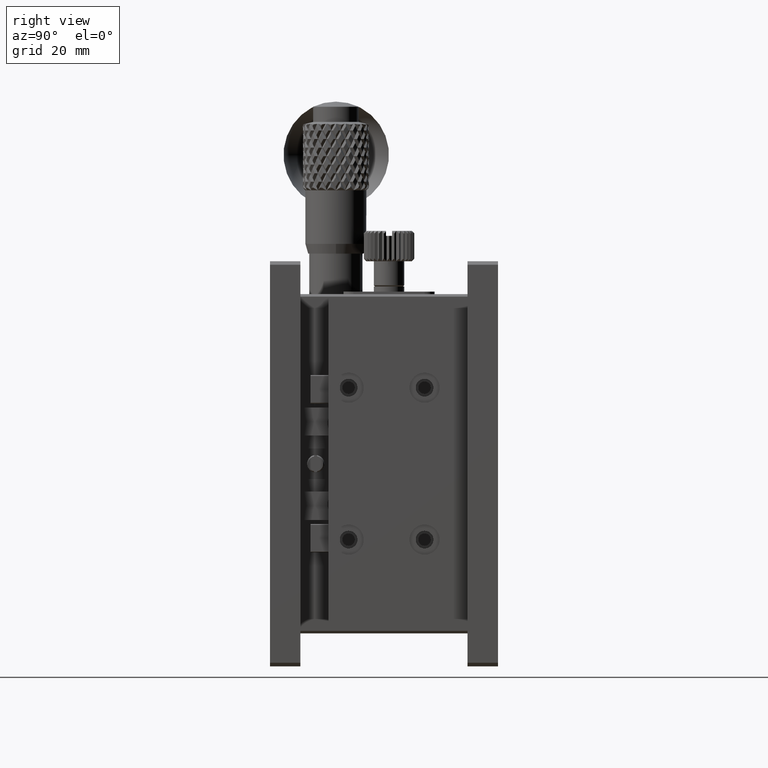
[diagram: clean part render]
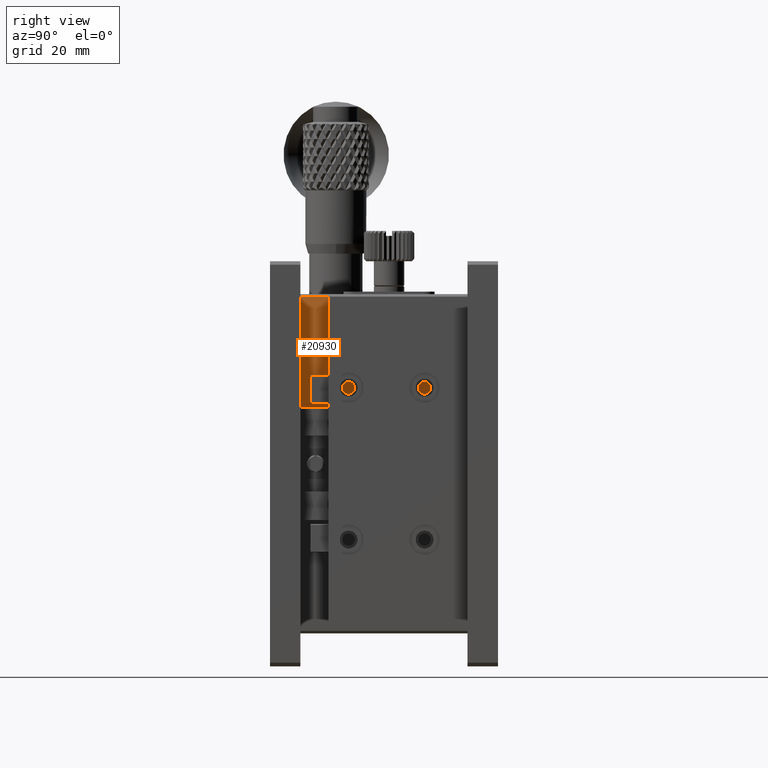
[diagram: same view with one face highlighted and labeled with its STEP entity id]
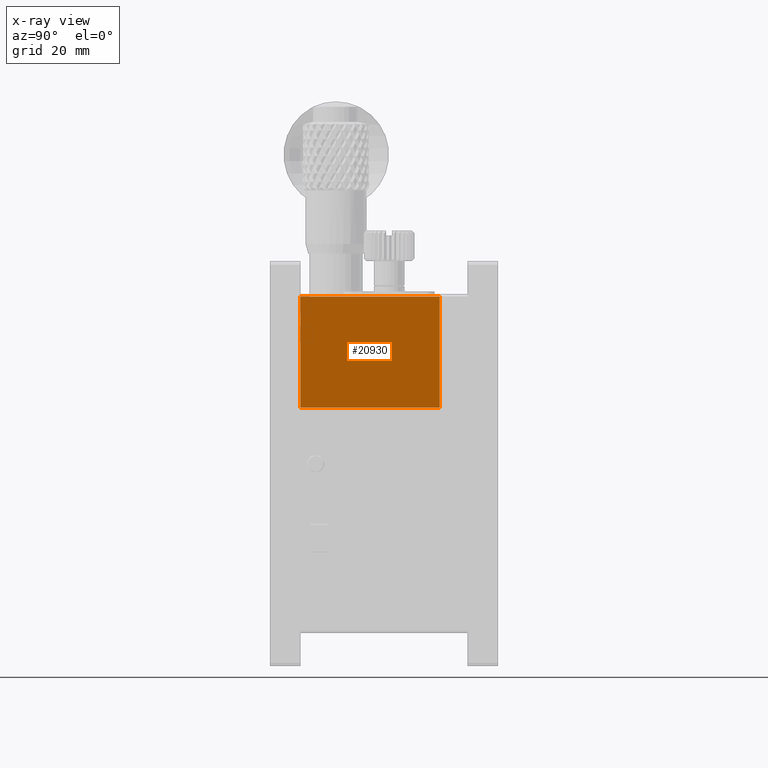
[diagram: x-ray of the same camera — body ghosted, the highlighted face saturated]
A machine part, right view. The second image highlights one B-rep face of the part: STEP entity #20930.
The next image is the same camera in x-ray: the body ghosted, the highlighted face saturated — about 0% of this face is hidden behind the body in this view.
In plain terms, the highlighted planar face has unit normal (-1, 0, 0).
Its self-contained STEP definition (entity closure, byte-faithful):
#3501 = VECTOR ( 'NONE', #39960, 1000.000000000000000 ) ;
#4713 = ORIENTED_EDGE ( 'NONE', *, *, #33864, .F. ) ;
#5979 = PLANE ( 'NONE',  #59680 ) ;
#8043 = CARTESIAN_POINT ( 'NONE',  ( 56.50000000000000000, 5.999999999999984901, -7.000000000000000888 ) ) ;
#8507 = CARTESIAN_POINT ( 'NONE',  ( 56.50000000000000000, 33.50000000000000000, -7.000000000000000000 ) ) ;
#9471 = ORIENTED_EDGE ( 'NONE', *, *, #42167, .F. ) ;
#10727 = FACE_OUTER_BOUND ( 'NONE', #64405, .T. ) ;
#12031 = CARTESIAN_POINT ( 'NONE',  ( 56.50000000000000000, 33.50000000000000000, -28.89999999999999858 ) ) ;
#12896 = DIRECTION ( 'NONE',  ( 0.000000000000000000, -0.000000000000000000, 1.000000000000000000 ) ) ;
#12967 = ORIENTED_EDGE ( 'NONE', *, *, #20586, .F. ) ;
#13228 = CARTESIAN_POINT ( 'NONE',  ( 56.50000000000000000, 6.000000000000000000, 0.000000000000000000 ) ) ;
#20544 = EDGE_CURVE ( 'NONE', #41090, #52443, #44034, .T. ) ;
#20586 = EDGE_CURVE ( 'NONE', #50372, #47325, #51049, .T. ) ;
#20764 = VECTOR ( 'NONE', #53635, 1000.000000000000000 ) ;
#20930 = ADVANCED_FACE ( 'NONE', ( #10727 ), #5979, .F. ) ;
#22179 = ORIENTED_EDGE ( 'NONE', *, *, #20544, .F. ) ;
#23177 = CARTESIAN_POINT ( 'NONE',  ( 56.50000000000000000, 6.000000000000003553, -28.89999999999999858 ) ) ;
#28289 = LINE ( 'NONE', #12031, #43821 ) ;
#28299 = DIRECTION ( 'NONE',  ( -1.000000000000000000, 0.000000000000000000, 0.000000000000000000 ) ) ;
#28624 = DIRECTION ( 'NONE',  ( -0.000000000000000000, -1.000000000000000000, 0.000000000000000000 ) ) ;
#32062 = CARTESIAN_POINT ( 'NONE',  ( 56.50000000000000000, 33.50000000000000000, -7.000000000000000000 ) ) ;
#33864 = EDGE_CURVE ( 'NONE', #47325, #41090, #28289, .T. ) ;
#38476 = DIRECTION ( 'NONE',  ( 0.000000000000000000, 0.000000000000000000, 1.000000000000000000 ) ) ;
#39960 = DIRECTION ( 'NONE',  ( -0.000000000000000000, -0.000000000000000000, -1.000000000000000000 ) ) ;
#41090 = VERTEX_POINT ( 'NONE', #23177 ) ;
#42167 = EDGE_CURVE ( 'NONE', #52443, #50372, #48584, .T. ) ;
#43547 = CARTESIAN_POINT ( 'NONE',  ( 56.50000000000000000, 33.50000000000000000, -28.89999999999999858 ) ) ;
#43821 = VECTOR ( 'NONE', #28624, 1000.000000000000000 ) ;
#44034 = LINE ( 'NONE', #13228, #48824 ) ;
#47325 = VERTEX_POINT ( 'NONE', #43547 ) ;
#48584 = LINE ( 'NONE', #32062, #20764 ) ;
#48824 = VECTOR ( 'NONE', #12896, 1000.000000000000000 ) ;
#50372 = VERTEX_POINT ( 'NONE', #60667 ) ;
#51049 = LINE ( 'NONE', #8507, #3501 ) ;
#52443 = VERTEX_POINT ( 'NONE', #8043 ) ;
#53635 = DIRECTION ( 'NONE',  ( 0.000000000000000000, 1.000000000000000000, -0.000000000000000000 ) ) ;
#59680 = AXIS2_PLACEMENT_3D ( 'NONE', #61440, #28299, #38476 ) ;
#60667 = CARTESIAN_POINT ( 'NONE',  ( 56.50000000000000000, 33.50000000000000000, -7.000000000000000888 ) ) ;
#61440 = CARTESIAN_POINT ( 'NONE',  ( 56.50000000000000000, 33.50000000000000000, -7.000000000000000000 ) ) ;
#64405 = EDGE_LOOP ( 'NONE', ( #4713, #12967, #9471, #22179 ) ) ;